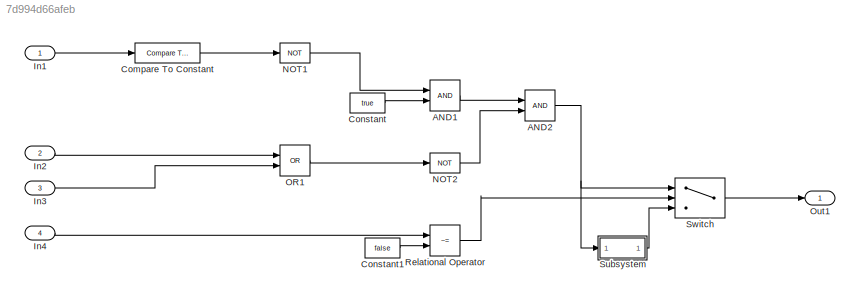
MODEL slx_7d994d66afeb
KIND model
BLOCK [Logic] AND1
  AllPortsSameDT = off
  OutDataTypeStr = boolean
  Ports = [2, 1]
BLOCK [Logic] AND2
  AllPortsSameDT = off
  OutDataTypeStr = boolean
  Ports = [2, 1]
BLOCK [Reference] Compare To Constant  REF=simulink/Logic and Bit
Operations/Compare
To Constant
  OutDataTypeStr = boolean
  Ports = [1, 1]
  SourceBlock = simulink/Logic and Bit\nOperations/Compare\nTo Constant
  SourceType = Compare To Constant
  ZeroCross = on
  const = 1
  relop = >=
BLOCK [Constant] Constant
  Value = true
BLOCK [Constant] Constant1
  Value = false
BLOCK [Inport] In1
  IconDisplay = Port number
BLOCK [Inport] In2
  IconDisplay = Port number
  Port = 2
BLOCK [Inport] In3
  IconDisplay = Port number
  Port = 3
BLOCK [Inport] In4
  IconDisplay = Port number
  Port = 4
BLOCK [Logic] NOT1
  AllPortsSameDT = off
  Operator = NOT
  OutDataTypeStr = boolean
  Ports = [1, 1]
BLOCK [Logic] NOT2
  AllPortsSameDT = off
  Operator = NOT
  OutDataTypeStr = boolean
  Ports = [1, 1]
BLOCK [Logic] OR1
  AllPortsSameDT = off
  Operator = OR
  OutDataTypeStr = boolean
  Ports = [2, 1]
BLOCK [Outport] Out1
  IconDisplay = Port number
BLOCK [RelationalOperator] Relational Operator
  InputSameDT = off
  Operator = ~=
  OutDataTypeStr = boolean
  Ports = [2, 1]
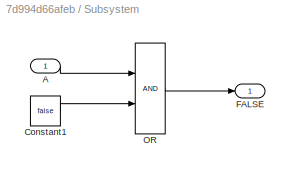
BLOCK [SubSystem] Subsystem
  FunctionWithSeparateData = off
  MaskHideContents = off
  MinAlgLoopOccurrences = off
  Opaque = off
  Ports = [1, 1]
  PropExecContextOutsideSubsystem = off
  RTWSystemCode = Auto
  RequestExecContextInheritance = off
  Variant = off
BLOCK [Inport] Subsystem/A
  IconDisplay = Port number
BLOCK [Constant] Subsystem/Constant1
  Value = false
BLOCK [Outport] Subsystem/FALSE
  IconDisplay = Port number
BLOCK [Logic] Subsystem/OR
  OutDataTypeStr = boolean
  Ports = [2, 1]
BLOCK [Switch] Switch
  Criteria = u2 ~= 0
  InputSameDT = off
  SaturateOnIntegerOverflow = off
LINE AND1:1 -> AND2:1
NET AND2:1 -> Subsystem:1, Switch:1
LINE Compare To Constant:1 -> NOT1:1
LINE Constant1:1 -> Relational Operator:2
LINE Constant:1 -> AND1:2
LINE In1:1 -> Compare To Constant:1
LINE In2:1 -> OR1:1
LINE In3:1 -> OR1:2
LINE In4:1 -> Relational Operator:1
LINE NOT1:1 -> AND1:1
LINE NOT2:1 -> AND2:2
LINE OR1:1 -> NOT2:1
LINE Relational Operator:1 -> Switch:2
LINE Subsystem/A:1 -> Subsystem/OR:1
LINE Subsystem/Constant1:1 -> Subsystem/OR:2
LINE Subsystem/OR:1 -> Subsystem/FALSE:1
LINE Subsystem:1 -> Switch:3
LINE Switch:1 -> Out1:1
note: NET lines group one-source signal fan-out (src -> all destinations, sorted); 1:1 wires keep LINE
